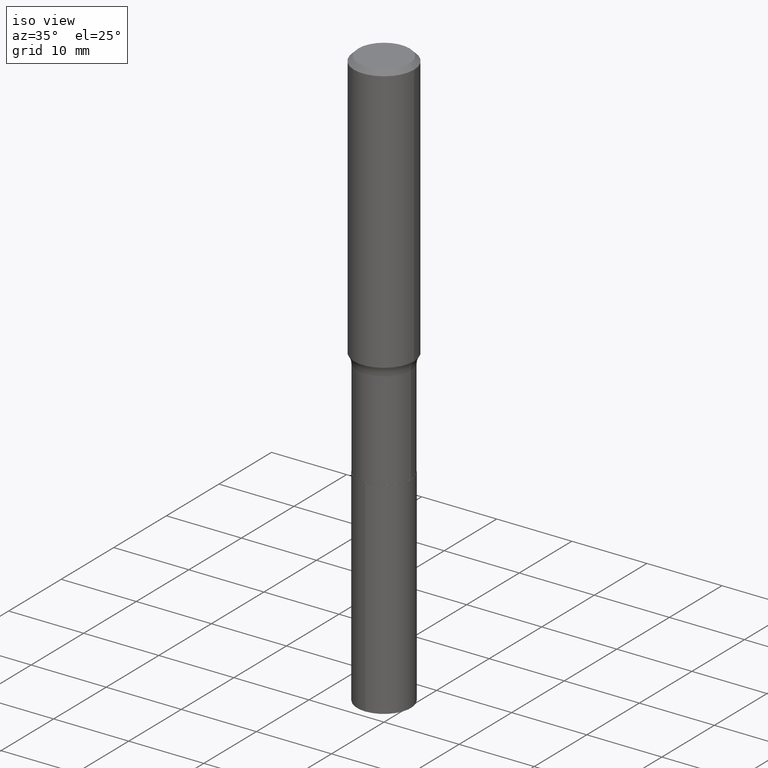
[diagram: clean part render]
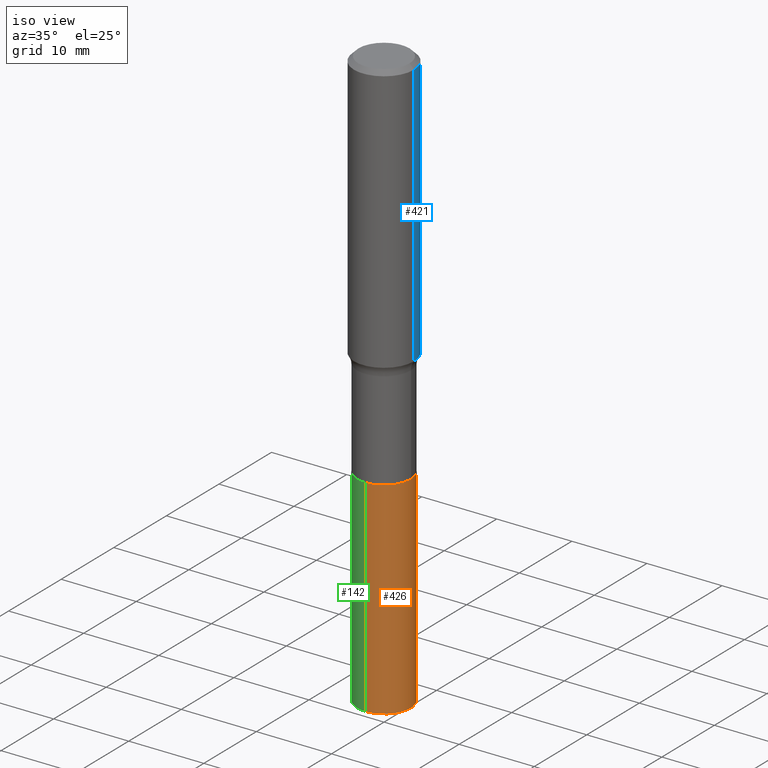
[diagram: same view with three faces highlighted in distinct colors, each labeled with its STEP entity id]
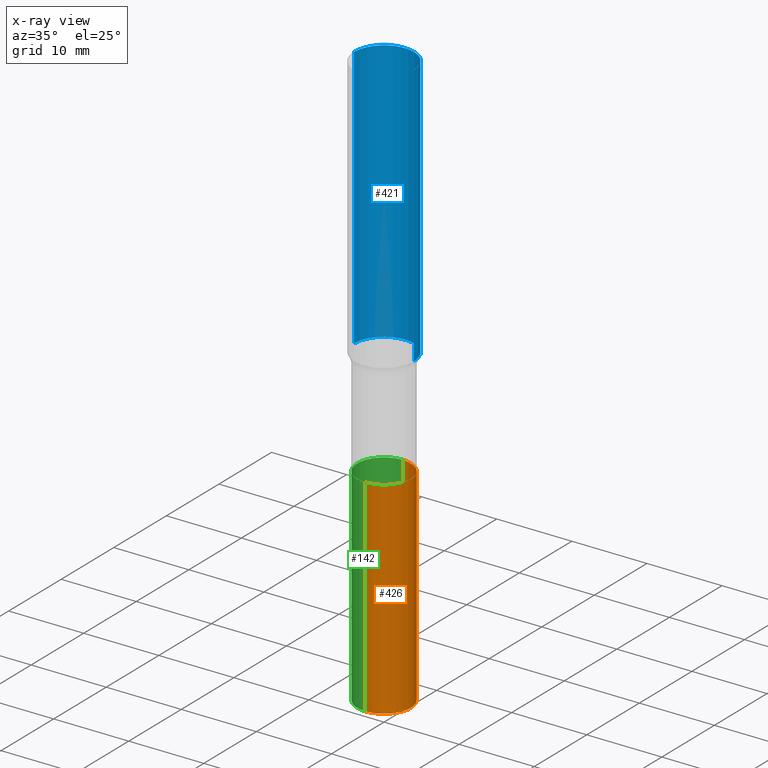
[diagram: x-ray of the same camera — body ghosted, the three highlighted faces saturated]
A machine part, iso view with three faces highlighted in distinct colors.
The next image is the same camera in x-ray (body ghosted, the three faces saturated) — at least one of them is partly hidden behind the body in this view.
Their STEP definitions:

[orange] entity #426 — the highlighted cylindrical surface (edge-blend (fillet) strip) has radius 3.5712 mm, axis along (-0, 0, 1).
#8 = DIRECTION ( 'NONE',  ( -6.982962677686265133E-15, -1.000000000000000000, 3.885985766236505386E-15 ) ) ;
#22 = ORIENTED_EDGE ( 'NONE', *, *, #255, .T. ) ;
#29 = ORIENTED_EDGE ( 'NONE', *, *, #294, .F. ) ;
#48 = CARTESIAN_POINT ( 'NONE',  ( -9.818045524826407881E-16, -0.1406000000000068861, -1.968499999999999472 ) ) ;
#82 = EDGE_CURVE ( 'NONE', #378, #197, #460, .T. ) ;
#101 = DIRECTION ( 'NONE',  ( -2.445565123953856733E-29, 3.491343406316271443E-15, 1.000000000000000000 ) ) ;
#102 = CARTESIAN_POINT ( 'NONE',  ( 4.813905344975441835E-29, -6.872981015512731707E-15, -1.968500000000000139 ) ) ;
#133 = DIRECTION ( 'NONE',  ( -2.445565123953856733E-29, 3.491343406316271443E-15, 1.000000000000000000 ) ) ;
#136 = EDGE_CURVE ( 'NONE', #397, #443, #276, .T. ) ;
#162 = CARTESIAN_POINT ( 'NONE',  ( 4.813905344975441835E-29, -6.872981015512731707E-15, -1.968500000000000139 ) ) ;
#178 = CIRCLE ( 'NONE', #295, 0.1406000000000000028 ) ;
#189 = CARTESIAN_POINT ( 'NONE',  ( 9.990230864787750338E-16, 0.1405999999999893169, -3.053393912647578201 ) ) ;
#197 = VERTEX_POINT ( 'NONE', #246 ) ;
#204 = CARTESIAN_POINT ( 'NONE',  ( 9.990230864787756255E-16, 0.1405999999999931471, -1.968500000000000583 ) ) ;
#237 = DIRECTION ( 'NONE',  ( -2.445565123953856733E-29, 3.491343406316271443E-15, 1.000000000000000000 ) ) ;
#246 = CARTESIAN_POINT ( 'NONE',  ( -9.818045524826407881E-16, -0.1406000000000068861, -1.968499999999999472 ) ) ;
#253 = DIRECTION ( 'NONE',  ( -6.982962677686265133E-15, -1.000000000000000000, 3.885985766236505386E-15 ) ) ;
#255 = EDGE_CURVE ( 'NONE', #378, #397, #178, .T. ) ;
#267 = VECTOR ( 'NONE', #237, 39.37007874015748143 ) ;
#272 = FACE_OUTER_BOUND ( 'NONE', #370, .T. ) ;
#276 = LINE ( 'NONE', #422, #267 ) ;
#277 = DIRECTION ( 'NONE',  ( -6.982962677686265133E-15, -1.000000000000000000, 3.885985766236505386E-15 ) ) ;
#289 = AXIS2_PLACEMENT_3D ( 'NONE', #102, #133, #277 ) ;
#294 = EDGE_CURVE ( 'NONE', #197, #443, #350, .T. ) ;
#295 = AXIS2_PLACEMENT_3D ( 'NONE', #441, #101, #253 ) ;
#346 = DIRECTION ( 'NONE',  ( -2.445565123953856733E-29, 3.491343406316271443E-15, 1.000000000000000000 ) ) ;
#349 = DIRECTION ( 'NONE',  ( -2.445565123953856733E-29, 3.491343406316271443E-15, 1.000000000000000000 ) ) ;
#350 = CIRCLE ( 'NONE', #400, 0.1406000000000000028 ) ;
#361 = CYLINDRICAL_SURFACE ( 'NONE', #289, 0.1406000000000000028 ) ;
#370 = EDGE_LOOP ( 'NONE', ( #22, #485, #29, #436 ) ) ;
#378 = VERTEX_POINT ( 'NONE', #417 ) ;
#397 = VERTEX_POINT ( 'NONE', #189 ) ;
#400 = AXIS2_PLACEMENT_3D ( 'NONE', #162, #346, #8 ) ;
#417 = CARTESIAN_POINT ( 'NONE',  ( -9.818045524826143612E-16, -0.1406000000000106331, -3.053393912647576869 ) ) ;
#422 = CARTESIAN_POINT ( 'NONE',  ( 9.990230864787488042E-16, 0.1405999999999931194, -1.968500000000000583 ) ) ;
#426 = ADVANCED_FACE ( 'NONE', ( #272 ), #361, .T. ) ;
#436 = ORIENTED_EDGE ( 'NONE', *, *, #82, .F. ) ;
#441 = CARTESIAN_POINT ( 'NONE',  ( 7.467084060936199590E-29, -1.066071822398751254E-14, -3.053393912647577313 ) ) ;
#443 = VERTEX_POINT ( 'NONE', #204 ) ;
#460 = LINE ( 'NONE', #48, #475 ) ;
#475 = VECTOR ( 'NONE', #349, 39.37007874015748143 ) ;
#485 = ORIENTED_EDGE ( 'NONE', *, *, #136, .T. ) ;

[blue] entity #421 — the highlighted cylindrical surface (partial cylindrical patch) has radius 4.0005 mm, axis along (-0, 0, 1).
#1 = DIRECTION ( 'NONE',  ( 1.000000000000000000, -6.982962677686267499E-15, 0.000000000000000000 ) ) ;
#4 = CARTESIAN_POINT ( 'NONE',  ( -0.1575000000000000844, 1.119104808822158392E-15, -7.747322767151481189E-30 ) ) ;
#31 = CARTESIAN_POINT ( 'NONE',  ( 0.1575000000000000844, -1.099816621735587677E-15, 7.679978421878603638E-30 ) ) ;
#49 = AXIS2_PLACEMENT_3D ( 'NONE', #236, #316, #1 ) ;
#54 = DIRECTION ( 'NONE',  ( -2.445468806185136597E-29, 3.491481338843145583E-15, 1.000000000000000000 ) ) ;
#57 = VECTOR ( 'NONE', #345, 39.37007874015748143 ) ;
#76 = CIRCLE ( 'NONE', #49, 0.1575000000000001676 ) ;
#84 = LINE ( 'NONE', #4, #57 ) ;
#116 = ORIENTED_EDGE ( 'NONE', *, *, #220, .F. ) ;
#118 = AXIS2_PLACEMENT_3D ( 'NONE', #134, #54, #172 ) ;
#134 = CARTESIAN_POINT ( 'NONE',  ( 5.777420054612421104E-31, -8.248624663016984002E-17, -0.02362500000000014588 ) ) ;
#139 = EDGE_LOOP ( 'NONE', ( #144, #210, #228, #116 ) ) ;
#144 = ORIENTED_EDGE ( 'NONE', *, *, #212, .T. ) ;
#158 = DIRECTION ( 'NONE',  ( 1.000000000000000000, -6.982962677686267499E-15, 4.876176775795936353E-29 ) ) ;
#172 = DIRECTION ( 'NONE',  ( 1.000000000000000000, -6.982962677686265922E-15, 0.000000000000000000 ) ) ;
#184 = EDGE_CURVE ( 'NONE', #360, #488, #304, .T. ) ;
#185 = AXIS2_PLACEMENT_3D ( 'NONE', #413, #275, #158 ) ;
#190 = DIRECTION ( 'NONE',  ( -2.445468806185136877E-29, 3.491481338843145188E-15, 1.000000000000000000 ) ) ;
#199 = CARTESIAN_POINT ( 'NONE',  ( 0.1575000000000001676, -6.006447907562292787E-15, -1.405315053882673304 ) ) ;
#210 = ORIENTED_EDGE ( 'NONE', *, *, #377, .T. ) ;
#211 = VERTEX_POINT ( 'NONE', #380 ) ;
#212 = EDGE_CURVE ( 'NONE', #291, #211, #76, .T. ) ;
#220 = EDGE_CURVE ( 'NONE', #291, #360, #457, .T. ) ;
#228 = ORIENTED_EDGE ( 'NONE', *, *, #184, .F. ) ;
#236 = CARTESIAN_POINT ( 'NONE',  ( 3.436654127132461925E-29, -4.906631285826703729E-15, -1.405315053882673304 ) ) ;
#275 = DIRECTION ( 'NONE',  ( -2.445468806185136597E-29, 3.491481338843145583E-15, 1.000000000000000000 ) ) ;
#291 = VERTEX_POINT ( 'NONE', #199 ) ;
#292 = CARTESIAN_POINT ( 'NONE',  ( -0.1575000000000000011, -1.375453957406277973E-15, -0.02362500000000014588 ) ) ;
#304 = CIRCLE ( 'NONE', #118, 0.1575000000000000011 ) ;
#316 = DIRECTION ( 'NONE',  ( -2.445468806185136597E-29, 3.491481338843145583E-15, 1.000000000000000000 ) ) ;
#324 = VECTOR ( 'NONE', #190, 39.37007874015748143 ) ;
#340 = FACE_OUTER_BOUND ( 'NONE', #139, .T. ) ;
#345 = DIRECTION ( 'NONE',  ( -2.445468806185136877E-29, 3.491481338843145188E-15, 1.000000000000000000 ) ) ;
#360 = VERTEX_POINT ( 'NONE', #464 ) ;
#377 = EDGE_CURVE ( 'NONE', #211, #488, #84, .T. ) ;
#380 = CARTESIAN_POINT ( 'NONE',  ( -0.1575000000000001676, -3.787526477004544548E-15, -1.405315053882673304 ) ) ;
#413 = CARTESIAN_POINT ( 'NONE',  ( 0.000000000000000000, 0.000000000000000000, 0.000000000000000000 ) ) ;
#421 = ADVANCED_FACE ( 'NONE', ( #340 ), #491, .T. ) ;
#457 = LINE ( 'NONE', #31, #324 ) ;
#464 = CARTESIAN_POINT ( 'NONE',  ( 0.1575000000000000011, -1.182302868365756679E-15, -0.02362500000000014588 ) ) ;
#488 = VERTEX_POINT ( 'NONE', #292 ) ;
#491 = CYLINDRICAL_SURFACE ( 'NONE', #185, 0.1575000000000000844 ) ;

[green] entity #142 — the highlighted cylindrical surface (edge-blend (fillet) strip) has radius 3.5712 mm, axis along (-0, 0, 1).
#15 = CYLINDRICAL_SURFACE ( 'NONE', #225, 0.1406000000000000028 ) ;
#16 = CARTESIAN_POINT ( 'NONE',  ( 4.813905344975441835E-29, -6.872981015512731707E-15, -1.968500000000000139 ) ) ;
#19 = AXIS2_PLACEMENT_3D ( 'NONE', #16, #423, #88 ) ;
#26 = EDGE_LOOP ( 'NONE', ( #268, #342, #322, #232 ) ) ;
#48 = CARTESIAN_POINT ( 'NONE',  ( -9.818045524826407881E-16, -0.1406000000000068861, -1.968499999999999472 ) ) ;
#82 = EDGE_CURVE ( 'NONE', #378, #197, #460, .T. ) ;
#88 = DIRECTION ( 'NONE',  ( -6.982962677686265133E-15, -1.000000000000000000, 3.885985766236505386E-15 ) ) ;
#122 = EDGE_CURVE ( 'NONE', #397, #378, #388, .T. ) ;
#136 = EDGE_CURVE ( 'NONE', #397, #443, #276, .T. ) ;
#142 = ADVANCED_FACE ( 'NONE', ( #351 ), #15, .T. ) ;
#189 = CARTESIAN_POINT ( 'NONE',  ( 9.990230864787750338E-16, 0.1405999999999893169, -3.053393912647578201 ) ) ;
#197 = VERTEX_POINT ( 'NONE', #246 ) ;
#204 = CARTESIAN_POINT ( 'NONE',  ( 9.990230864787756255E-16, 0.1405999999999931471, -1.968500000000000583 ) ) ;
#225 = AXIS2_PLACEMENT_3D ( 'NONE', #391, #465, #382 ) ;
#232 = ORIENTED_EDGE ( 'NONE', *, *, #467, .F. ) ;
#237 = DIRECTION ( 'NONE',  ( -2.445565123953856733E-29, 3.491343406316271443E-15, 1.000000000000000000 ) ) ;
#246 = CARTESIAN_POINT ( 'NONE',  ( -9.818045524826407881E-16, -0.1406000000000068861, -1.968499999999999472 ) ) ;
#267 = VECTOR ( 'NONE', #237, 39.37007874015748143 ) ;
#268 = ORIENTED_EDGE ( 'NONE', *, *, #136, .F. ) ;
#276 = LINE ( 'NONE', #422, #267 ) ;
#282 = DIRECTION ( 'NONE',  ( -2.445565123953856733E-29, 3.491343406316271443E-15, 1.000000000000000000 ) ) ;
#322 = ORIENTED_EDGE ( 'NONE', *, *, #82, .T. ) ;
#342 = ORIENTED_EDGE ( 'NONE', *, *, #122, .T. ) ;
#347 = CARTESIAN_POINT ( 'NONE',  ( 7.467084060936199590E-29, -1.066071822398751254E-14, -3.053393912647577313 ) ) ;
#349 = DIRECTION ( 'NONE',  ( -2.445565123953856733E-29, 3.491343406316271443E-15, 1.000000000000000000 ) ) ;
#351 = FACE_OUTER_BOUND ( 'NONE', #26, .T. ) ;
#372 = AXIS2_PLACEMENT_3D ( 'NONE', #347, #282, #463 ) ;
#378 = VERTEX_POINT ( 'NONE', #417 ) ;
#382 = DIRECTION ( 'NONE',  ( -6.982962677686265133E-15, -1.000000000000000000, 3.885985766236505386E-15 ) ) ;
#388 = CIRCLE ( 'NONE', #372, 0.1406000000000000028 ) ;
#391 = CARTESIAN_POINT ( 'NONE',  ( 4.813905344975441835E-29, -6.872981015512731707E-15, -1.968500000000000139 ) ) ;
#395 = CIRCLE ( 'NONE', #19, 0.1406000000000000028 ) ;
#397 = VERTEX_POINT ( 'NONE', #189 ) ;
#417 = CARTESIAN_POINT ( 'NONE',  ( -9.818045524826143612E-16, -0.1406000000000106331, -3.053393912647576869 ) ) ;
#422 = CARTESIAN_POINT ( 'NONE',  ( 9.990230864787488042E-16, 0.1405999999999931194, -1.968500000000000583 ) ) ;
#423 = DIRECTION ( 'NONE',  ( -2.445565123953856733E-29, 3.491343406316271443E-15, 1.000000000000000000 ) ) ;
#443 = VERTEX_POINT ( 'NONE', #204 ) ;
#460 = LINE ( 'NONE', #48, #475 ) ;
#463 = DIRECTION ( 'NONE',  ( -6.982962677686265133E-15, -1.000000000000000000, 3.885985766236505386E-15 ) ) ;
#465 = DIRECTION ( 'NONE',  ( -2.445565123953856733E-29, 3.491343406316271443E-15, 1.000000000000000000 ) ) ;
#467 = EDGE_CURVE ( 'NONE', #443, #197, #395, .T. ) ;
#475 = VECTOR ( 'NONE', #349, 39.37007874015748143 ) ;